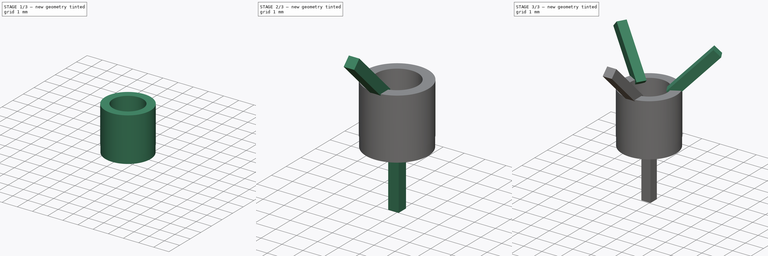
[diagram: build sequence overview — one tinted view per stage of 3, left to right]
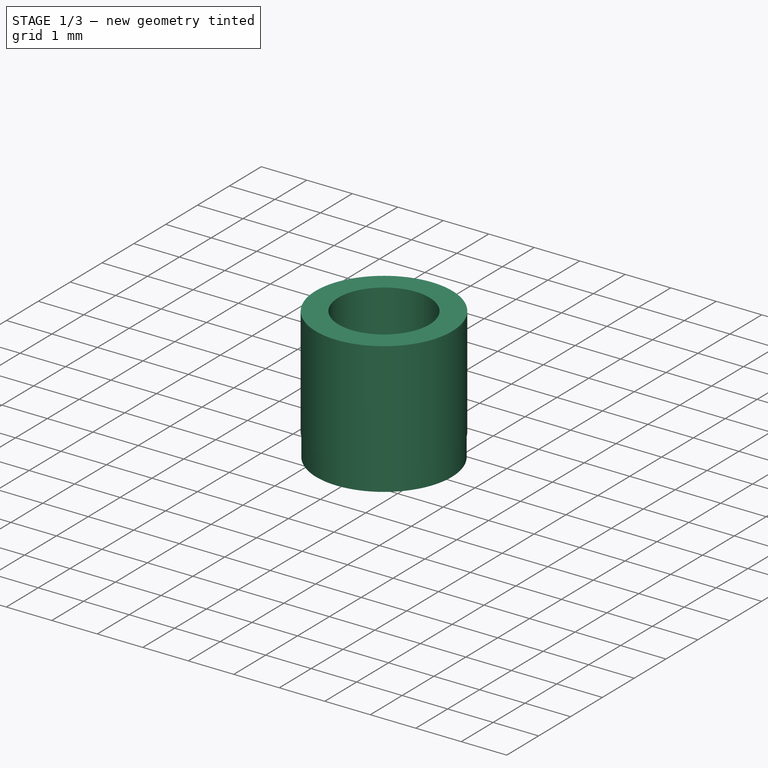
[diagram: stage 1 of 3 — iso view after this stage's code; geometry added in this stage tinted green]
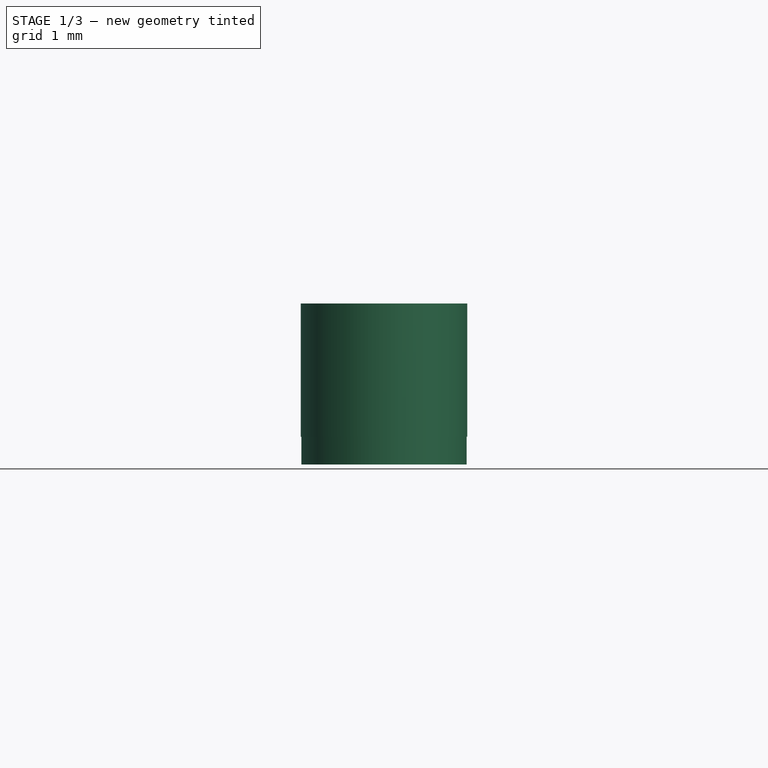
[diagram: stage 1 of 3 — front view after this stage's code; geometry added in this stage tinted green]
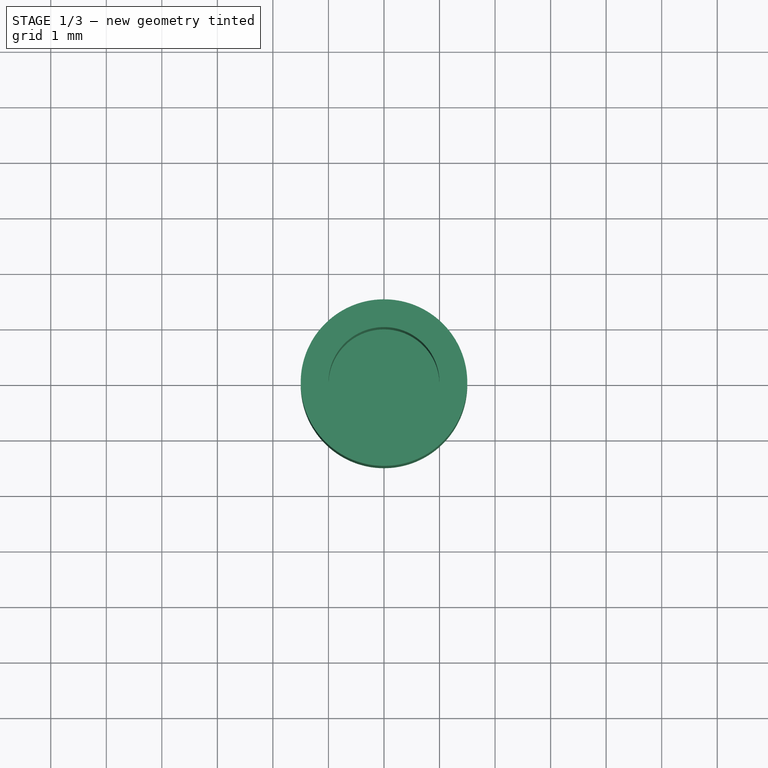
[diagram: stage 1 of 3 — top view after this stage's code; geometry added in this stage tinted green]
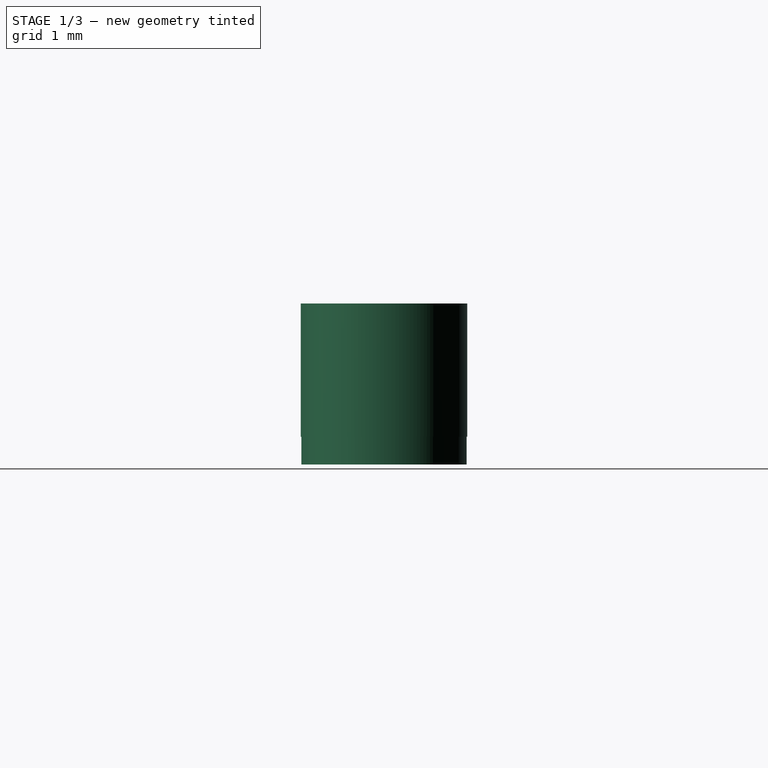
[diagram: stage 1 of 3 — right view after this stage's code; geometry added in this stage tinted green]
FCSTD DOCUMENT  (FreeCAD 0.19R24344 (Git))
Label: Magnet-Holder_1pc
Comment: Magnet Holder for cylindrical Magnet made from one piece.
License: Creative Commons Attribution-NonCommercial-ShareAlike
LicenseURL: http://creativecommons.org/licenses/by-nc-sa/4.0/
objects: Sketcher::SketchObject×6, PartDesign::Pad×6, Part::Part2DObjectPython×6, Part::RuledSurface×3, PartDesign::ShapeBinder×3, PartDesign::Body×1
note: 31 computed .brp shape members not serialized (recipe doc carries the construction recipe); baked Part::Feature solids carry a one-line shape summary decoded from their .brp

FEATURE [Sketcher::SketchObject] Sketch
  FullyConstrained = true
  MapMode = 5
  Support = -> [XY_Plane]
  sketch-geometry (2):
    g0: Circle CenterX=0 CenterY=0 CenterZ=0 NormalX=0 NormalY=0 NormalZ=1 AngleXU=0 Radius=1
    g1: Circle CenterX=0 CenterY=0 CenterZ=0 NormalX=0 NormalY=0 NormalZ=1 AngleXU=0 Radius=1.5
  constraints (4):
    c: Coincident(g0,g-1)
    c: Coincident(g1,g0)
    c: Diameter(g0) = 2
    c: Diameter(g1) = 3
FEATURE [PartDesign::Pad] Pad
  Direction = (1,1,1)
  Length = 2.4
  Length2 = 100
  Midplane = true
  Profile = -> Sketch
  Type = 0
FEATURE [Sketcher::SketchObject] Sketch001
  ExternalGeometry = -> [Pad]
  FullyConstrained = false
  MapMode = 5
  Placement = pos=(0,0,-1.2) rot=(1,0,0;3.14159rad)
  Support = -> [Pad]
  sketch-geometry (1):
    g0: Circle CenterX=0 CenterY=0 CenterZ=0 NormalX=0 NormalY=0 NormalZ=1 AngleXU=0 Radius=1.48824
  constraints (1):
    c: Tangent(g0,g-3) = -1.5708
FEATURE [PartDesign::Pad] Pad001
  BaseFeature = -> Pad
  Direction = (1,1,1)
  Length = 0.5
  Length2 = 100
  Profile = -> Sketch001
  Type = 0
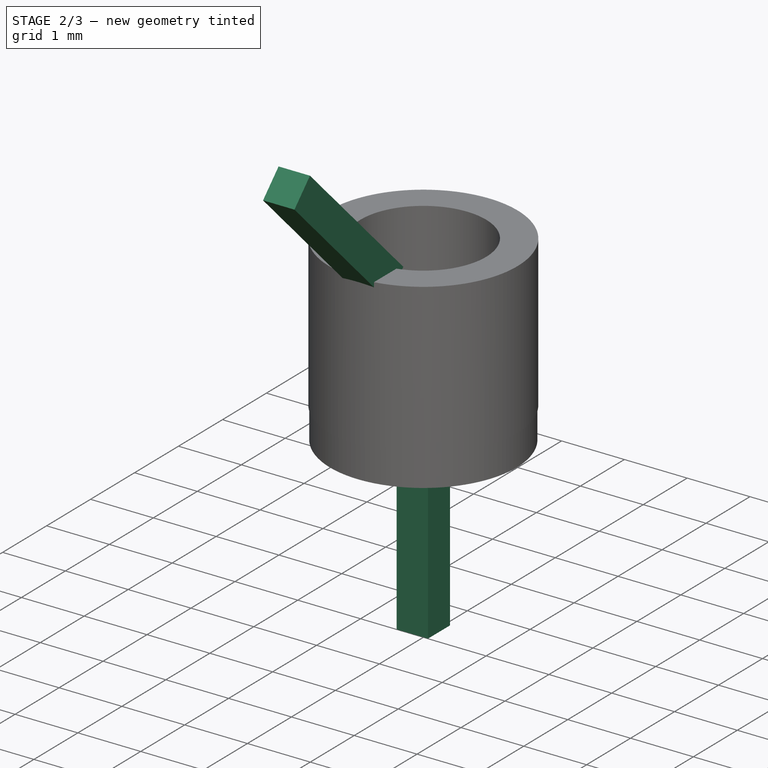
[diagram: stage 2 of 3 — iso view after this stage's code; geometry added in this stage tinted green]
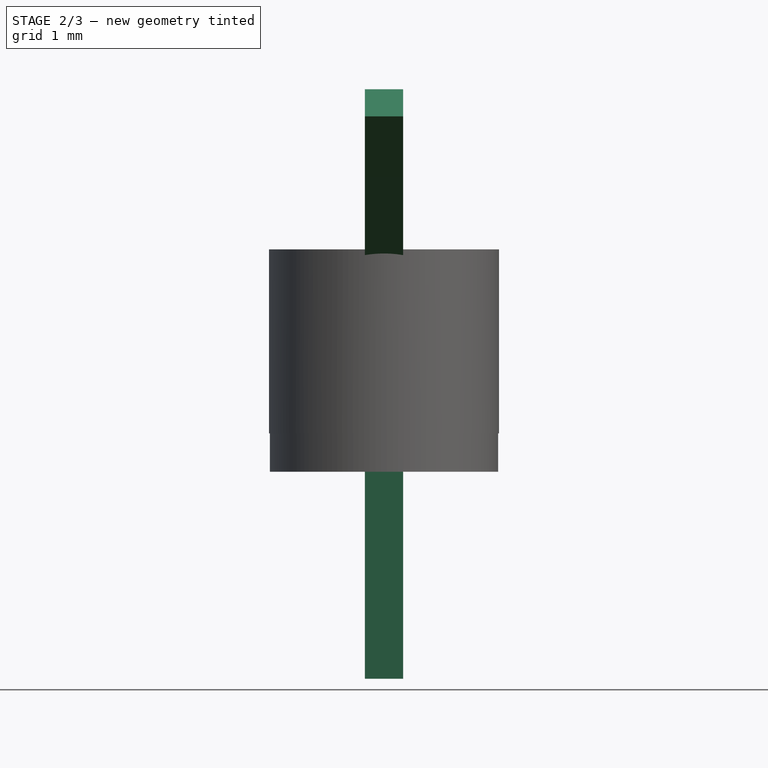
[diagram: stage 2 of 3 — front view after this stage's code; geometry added in this stage tinted green]
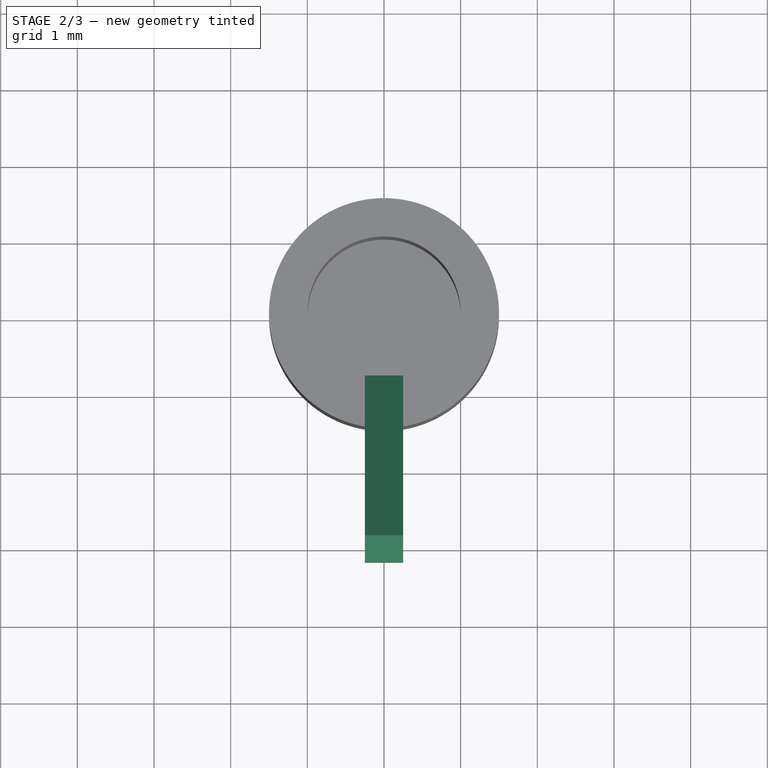
[diagram: stage 2 of 3 — top view after this stage's code; geometry added in this stage tinted green]
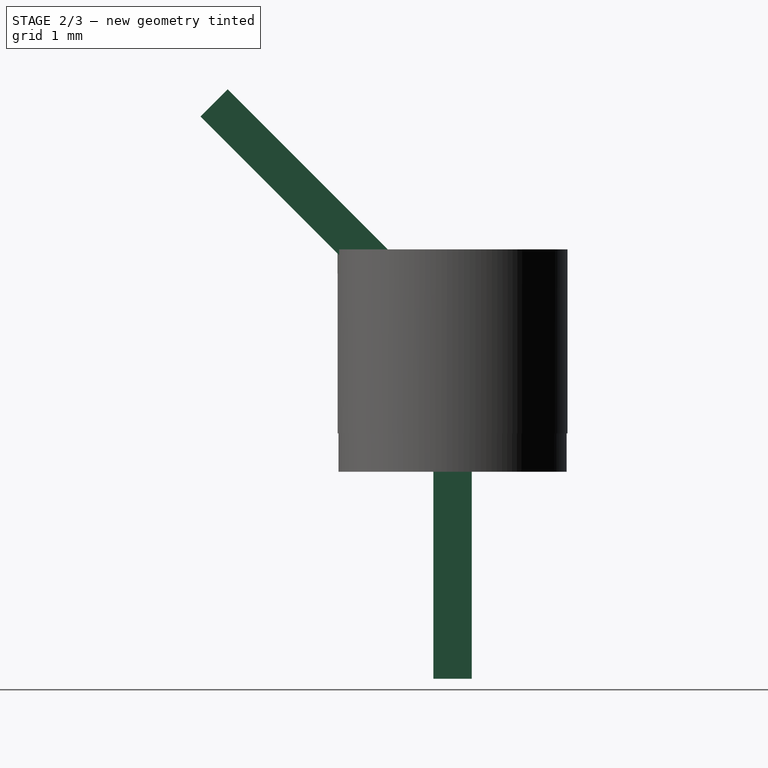
[diagram: stage 2 of 3 — right view after this stage's code; geometry added in this stage tinted green]
FEATURE [Sketcher::SketchObject] Sketch002
  ExternalGeometry = -> [Pad001]
  FullyConstrained = true
  MapMode = 5
  Placement = pos=(0,0,0) rot=(0.57735,0.57735,0.57735;2.0944rad)
  Support = -> [YZ_Plane]
  sketch-geometry (4):
    g0: LineSegment StartX=-0.25 StartY=-1.7 StartZ=0 EndX=0.25 EndY=-1.7 EndZ=0
    g1: LineSegment StartX=0.25 StartY=-1.7 StartZ=0 EndX=0.25 EndY=-4.4 EndZ=0
    g2: LineSegment StartX=0.25 StartY=-4.4 StartZ=0 EndX=-0.25 EndY=-4.4 EndZ=0
    g3: LineSegment StartX=-0.25 StartY=-4.4 StartZ=0 EndX=-0.25 EndY=-1.7 EndZ=0
  constraints (11):
    c: Coincident(g0,g1)
    c: Coincident(g1,g2)
    c: Coincident(g2,g3)
    c: Coincident(g3,g0)
    c: Horizontal(g0)
    c: Vertical(g1)
    c: Vertical(g3)
    c: PointOnObject(g0,g-3)
    c: DistanceY(g2,g-1) = 4.4
    c: Distance(g2) = 0.5
    c: Symmetric(g1,g2,g-2)
FEATURE [PartDesign::Pad] Pad002
  BaseFeature = -> Pad001
  Direction = (1,1,1)
  Length = 0.5
  Length2 = 100
  Midplane = true
  Profile = -> Sketch002
  Type = 0
FEATURE [Part::Part2DObjectPython] Line  # Draft 2D object (typed FeaturePython)
  Area = 0
  ChamferSize = 0
  Closed = false
  End = (2,2,-2)
  FilletRadius = 0
  Length = 5.65685
  MakeFace = false
  Placement = pos=(0,-2,2) rot=(0.57735,0.57735,0.57735;2.0944rad)
  Points = (2) [(0,0,2),(4,-4,2)]
  Start = (2,-2,2)
  Subdivisions = 0
FEATURE [Part::Part2DObjectPython] Line001  # Draft 2D object (typed FeaturePython)
  Area = 0
  ChamferSize = 0
  Closed = false
  End = (-2,2,-2)
  FilletRadius = 0
  Length = 5.65685
  MakeFace = false
  Placement = pos=(0,-2,2) rot=(0.57735,0.57735,0.57735;2.0944rad)
  Points = (2) [(0,0,-2),(4,-4,-2)]
  Start = (-2,-2,2)
  Subdivisions = 0
FEATURE [Part::RuledSurface] Ruled_Surface
  Curve1 = -> Line
  Curve2 = -> Line001
  Orientation = 0
FEATURE [PartDesign::ShapeBinder] CopyRuled_Surface
  TraceSupport = false
FEATURE [Sketcher::SketchObject] Sketch003
  FullyConstrained = true
  MapMode = 5
  Placement = pos=(0,0,0) rot=(-1,0,0;0.785398rad)
  Support = -> [CopyRuled_Surface]
  sketch-geometry (4):
    g0: LineSegment StartX=-0.25 StartY=-1.4 StartZ=0 EndX=0.25 EndY=-1.4 EndZ=0
    g1: LineSegment StartX=0.25 StartY=-1.4 StartZ=0 EndX=0.25 EndY=-4.4 EndZ=0
    g2: LineSegment StartX=0.25 StartY=-4.4 StartZ=0 EndX=-0.25 EndY=-4.4 EndZ=0
    g3: LineSegment StartX=-0.25 StartY=-4.4 StartZ=0 EndX=-0.25 EndY=-1.4 EndZ=0
  constraints (11):
    c: Coincident(g0,g1)
    c: Coincident(g1,g2)
    c: Coincident(g2,g3)
    c: Coincident(g3,g0)
    c: Horizontal(g0)
    c: Vertical(g1)
    c: Vertical(g3)
    c: Distance(g2) = 0.5
    c: Symmetric(g2,g1,g-2)
    c: DistanceY(g1,g-1) = 4.4
    c: DistanceY(g0,g-1) = 1.4
FEATURE [PartDesign::Pad] Pad003
  BaseFeature = -> Pad002
  Direction = (1,1,1)
  Length = 0.5
  Length2 = 100
  Midplane = true
  Profile = -> Sketch003
  Type = 0
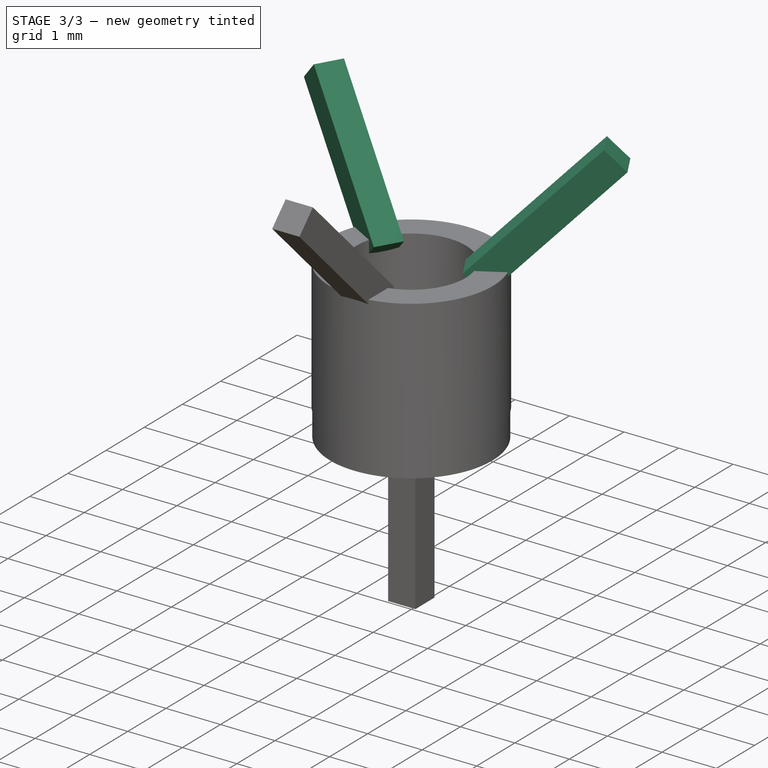
[diagram: stage 3 of 3 — iso view after this stage's code; geometry added in this stage tinted green]
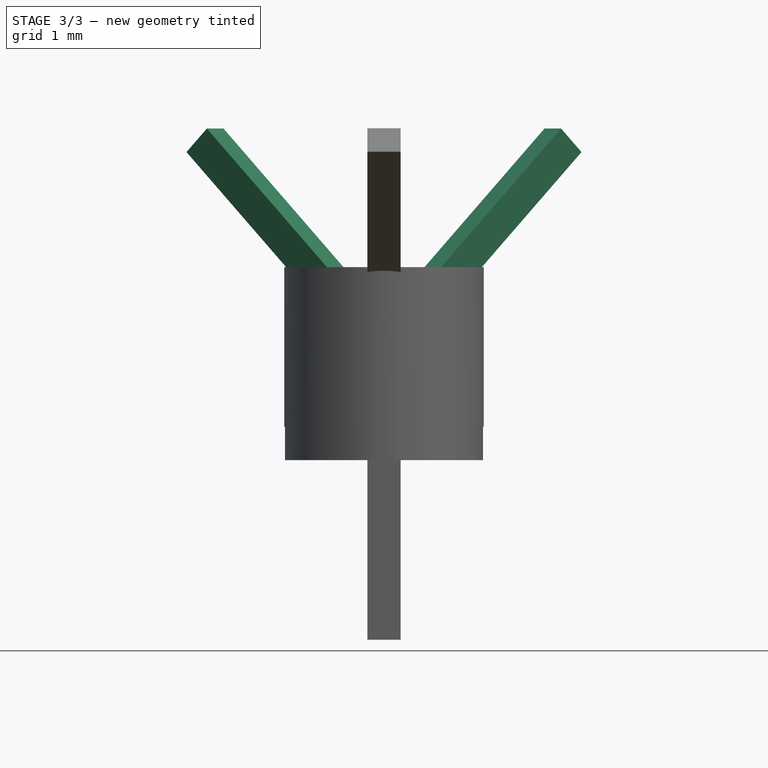
[diagram: stage 3 of 3 — front view after this stage's code; geometry added in this stage tinted green]
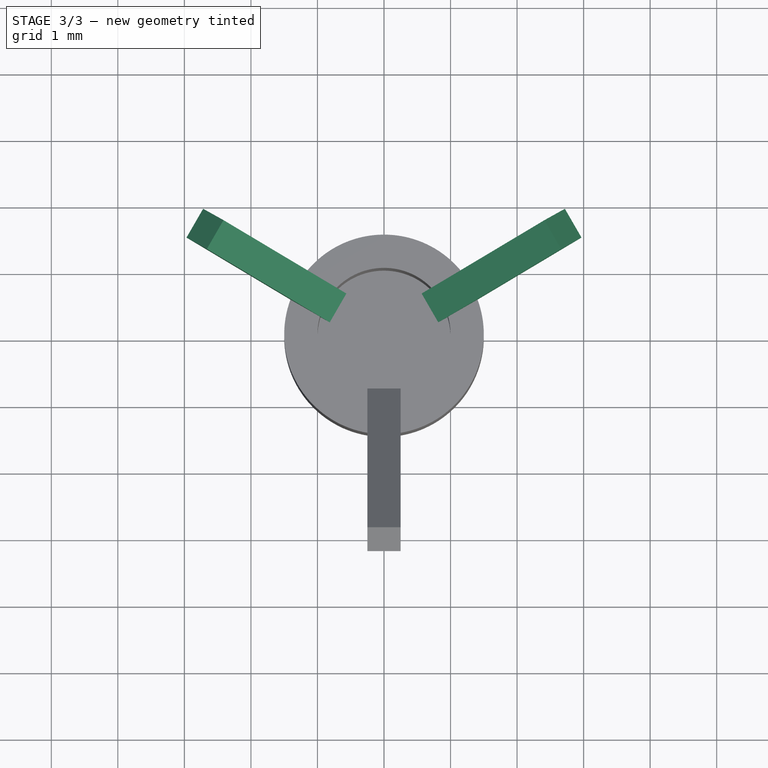
[diagram: stage 3 of 3 — top view after this stage's code; geometry added in this stage tinted green]
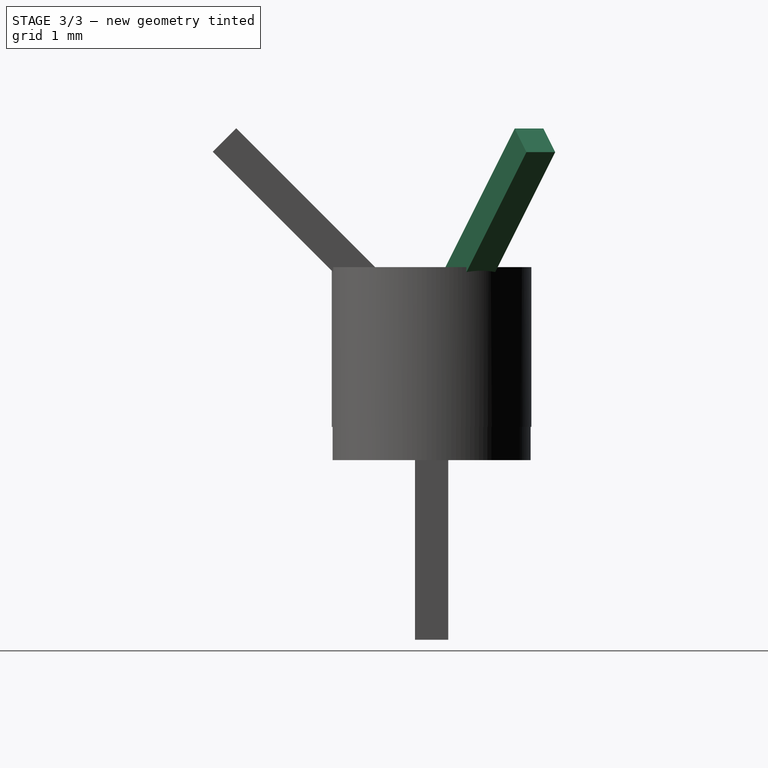
[diagram: stage 3 of 3 — right view after this stage's code; geometry added in this stage tinted green]
FEATURE [Part::Part2DObjectPython] Line006  # Draft 2D object (typed FeaturePython)
  Area = 0
  ChamferSize = 0
  Closed = false
  End = (-2.73205,-0.732051,2)
  FilletRadius = 0
  Length = 5.63027
  MakeFace = false
  Placement = pos=(0.715774,-2.72265,-1.98121) rot=(0,0,1;0rad)
  Points = (2) [(0,0,0),(-3.44782,1.9906,3.98121)]
  Start = (0.715774,-2.72265,-1.98121)
  Subdivisions = 0
FEATURE [Part::Part2DObjectPython] Line008  # Draft 2D object (typed FeaturePython)
  Area = 0
  ChamferSize = 0
  Closed = false
  End = (-0.732051,2.73205,2)
  FilletRadius = 0
  Length = 5.64194
  MakeFace = false
  Placement = pos=(2.72292,0.737322,-1.98946) rot=(0,0,1;0rad)
  Points = (2) [(0,0,0),(-3.45497,1.99473,3.98946)]
  Start = (2.72292,0.737322,-1.98946)
  Subdivisions = 0
FEATURE [Part::Part2DObjectPython] Line009  # Draft 2D object (typed FeaturePython)
  Area = 0
  ChamferSize = 0
  Closed = false
  End = (2.72183,-0.723544,1.9954)
  FilletRadius = 0
  Length = 5.65036
  MakeFace = false
  Placement = pos=(-0.732051,-2.73205,-2) rot=(0,0,1;0rad)
  Points = (2) [(0,0,0),(3.45388,2.00851,3.9954)]
  Start = (-0.732051,-2.73205,-2)
  Subdivisions = 0
FEATURE [Part::Part2DObjectPython] Line010  # Draft 2D object (typed FeaturePython)
  Area = 0
  ChamferSize = 0
  Closed = false
  End = (0.732051,2.73205,2)
  FilletRadius = 0
  Length = 5.65685
  MakeFace = false
  Placement = pos=(-2.73205,0.732051,-2) rot=(0,0,1;0rad)
  Points = (2) [(0,0,0),(3.4641,2,4)]
  Start = (-2.73205,0.732051,-2)
  Subdivisions = 0
FEATURE [Part::RuledSurface] Ruled_Surface001
  Curve1 = -> Line010
  Curve2 = -> Line009
  Orientation = 0
FEATURE [Part::RuledSurface] Ruled_Surface002
  Curve1 = -> Line008
  Curve2 = -> Line006
  Orientation = 0
FEATURE [PartDesign::ShapeBinder] CopyRuled_Surface001
  TraceSupport = false
FEATURE [Sketcher::SketchObject] Sketch004
  ExternalGeometry = -> [CopyRuled_Surface001]
  FullyConstrained = true
  MapMode = 5
  Placement = pos=(-3.87613e-09,-2.23788e-09,4.47576e-09) rot=(0.943446,-0.076169,0.322657;3.57987rad)
  Support = -> [CopyRuled_Surface001]
  sketch-geometry (4):
    g0: LineSegment StartX=1.22512 StartY=-0.677557 StartZ=0 EndX=3.56083 EndY=-2.58466 EndZ=0
    g1: LineSegment StartX=3.56083 StartY=-2.58466 StartZ=0 EndX=3.24461 EndY=-2.97196 EndZ=0
    g2: LineSegment StartX=3.24461 StartY=-2.97196 StartZ=0 EndX=0.908891 EndY=-1.06486 EndZ=0
    g3: LineSegment StartX=0.908891 StartY=-1.06486 StartZ=0 EndX=1.22512 EndY=-0.677557 EndZ=0
  constraints (12):
    c: Coincident(g0,g1)
    c: Coincident(g1,g2)
    c: Coincident(g2,g3)
    c: Coincident(g3,g0)
    c: Distance(g-1,g0) = 1.4
    c: Distance(g3) = 0.5
    c: Distance(g-1,g2) = 1.4
    c: Distance(g-1,g1) = 4.4
    c: Parallel(g1,g3)
    c: Parallel(g0,g2)
    c: Perpendicular(g0,g3)
    c: Parallel(g-3,g2)
FEATURE [PartDesign::Pad] Pad004
  BaseFeature = -> Pad003
  Direction = (1,1,1)
  Length = 0.5
  Length2 = 100
  Midplane = true
  Profile = -> Sketch004
  Type = 0
FEATURE [PartDesign::ShapeBinder] CopyRuled_Surface002
  TraceSupport = false
FEATURE [Sketcher::SketchObject] Sketch005
  ExternalGeometry = -> [CopyRuled_Surface002]
  FullyConstrained = true
  MapMode = 5
  Placement = pos=(-1.77651e-08,1.02567e-08,-2.05134e-08) rot=(0.557644,0.807875,0.190713;0.800913rad)
  Support = -> [CopyRuled_Surface002]
  sketch-geometry (4):
    g0: LineSegment StartX=-1.22512 StartY=0.677557 StartZ=0 EndX=-3.56083 EndY=2.58466 EndZ=0
    g1: LineSegment StartX=-3.56083 StartY=2.58466 StartZ=0 EndX=-3.24461 EndY=2.97196 EndZ=0
    g2: LineSegment StartX=-3.24461 StartY=2.97196 StartZ=0 EndX=-0.908891 EndY=1.06486 EndZ=0
    g3: LineSegment StartX=-0.908891 StartY=1.06486 StartZ=0 EndX=-1.22512 EndY=0.677557 EndZ=0
  constraints (12):
    c: Coincident(g0,g1)
    c: Coincident(g1,g2)
    c: Coincident(g2,g3)
    c: Coincident(g3,g0)
    c: Distance(g-1,g0) = 1.4
    c: Distance(g3) = 0.5
    c: Distance(g-1,g2) = 1.4
    c: Distance(g1) = 0.5
    c: Parallel(g1,g3)
    c: Distance(g-1,g0) = 4.4
    c: Perpendicular(g0,g3)
    c: Parallel(g-3,g0)
FEATURE [PartDesign::Pad] Pad005
  BaseFeature = -> Pad004
  Direction = (1,1,1)
  Length = 0.5
  Length2 = 100
  Midplane = true
  Profile = -> Sketch005
  Type = 0
FEATURE [PartDesign::Body] Body
  Group = -> [Sketch,Pad,Sketch001,Pad001,Sketch002,Pad002,CopyRuled_Surface,Sketch003,Pad003,CopyRuled_Surface001,Sketch004,Pad004,CopyRuled_Surface002,Sketch005,Pad005]
  Origin = -> Origin
  Tip = -> Pad005
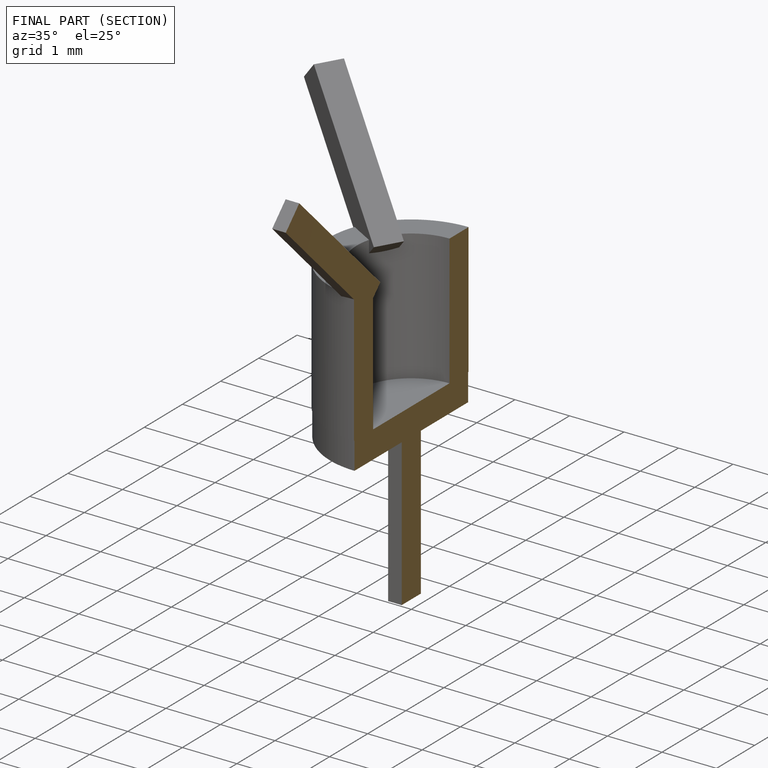
[diagram: finished part — half-section view (interior)]
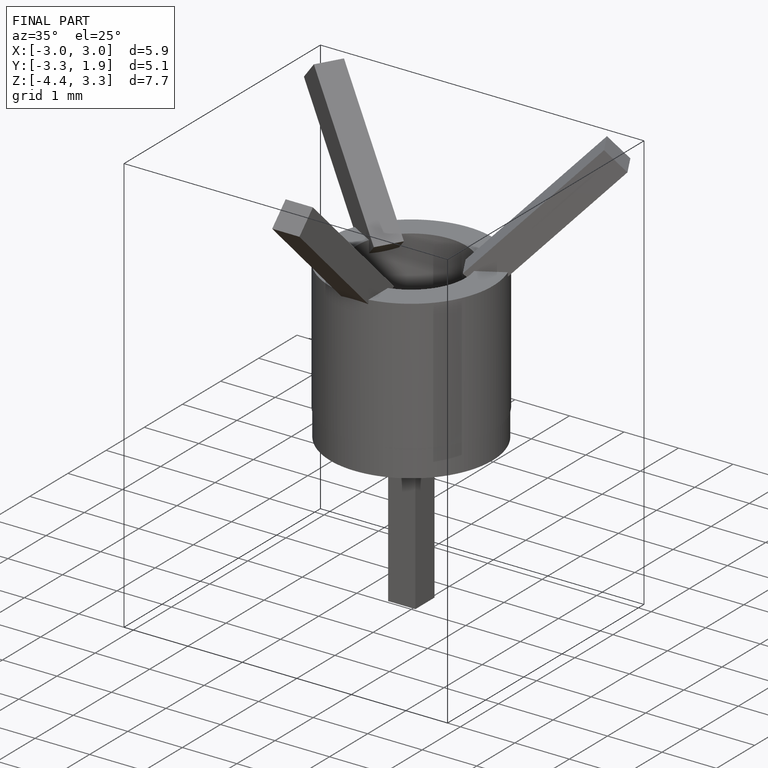
[diagram: finished part — iso view with bounding-box wireframe]
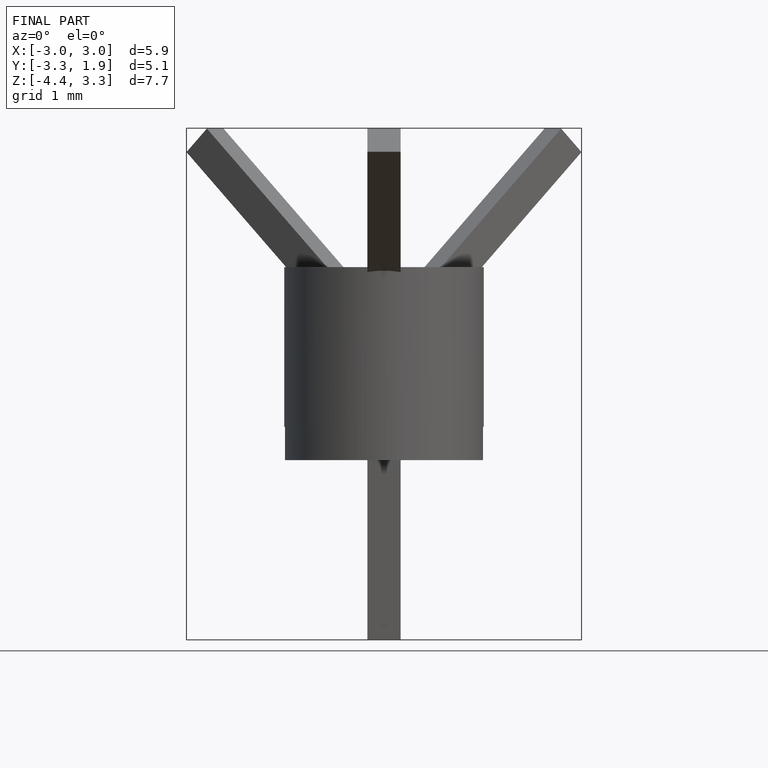
[diagram: finished part — front view with bounding-box wireframe]
